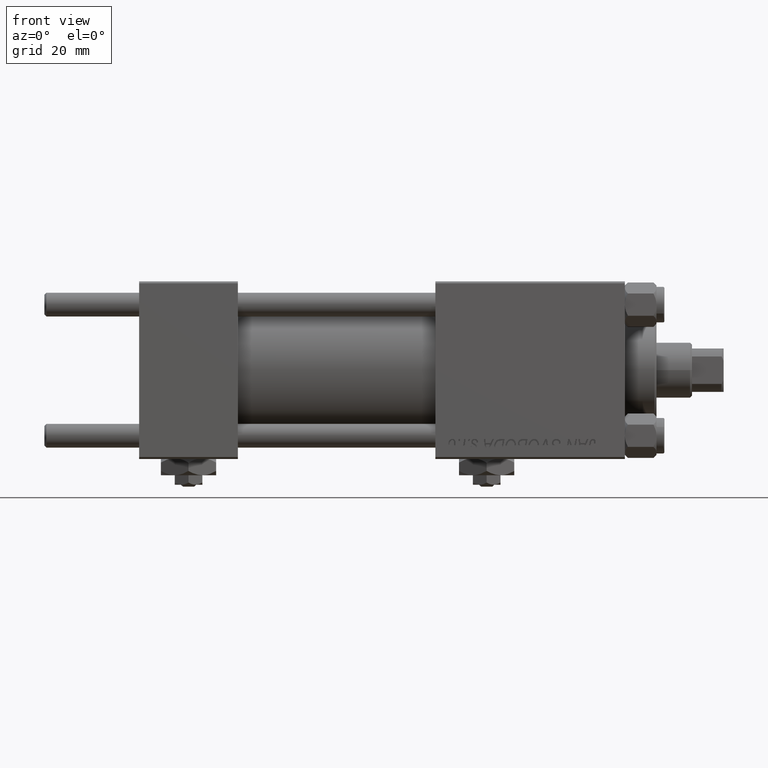
[diagram: clean part render]
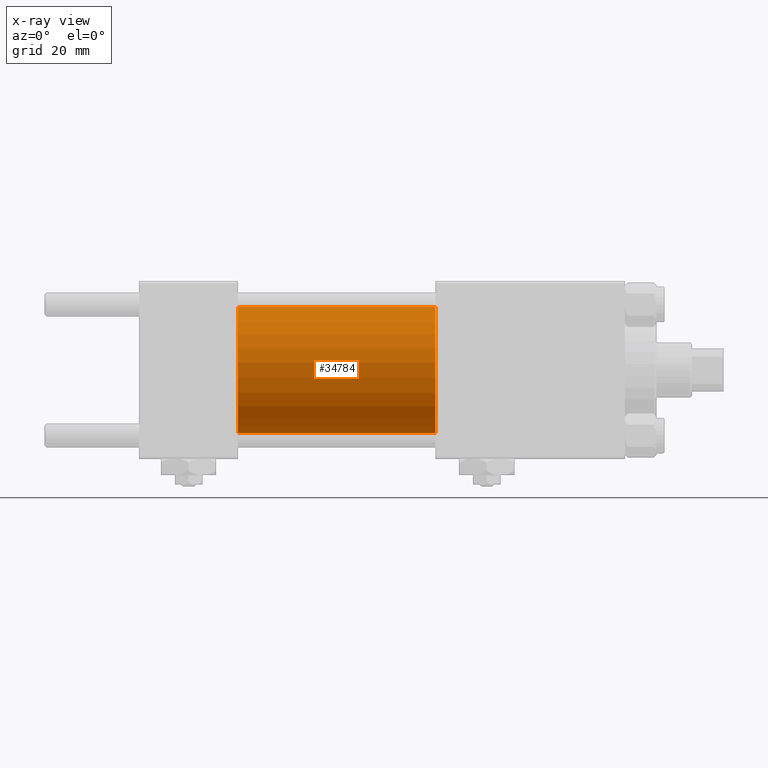
[diagram: x-ray — body ghosted, one internal face saturated and labeled with its STEP entity id]
A machine part, front view, then the same camera in x-ray: the body is ghosted and one INTERNAL B-rep face — a face not visible from any outside direction — is saturated and labeled: STEP entity #34784.
In plain terms, the highlighted cylindrical surface (partial cylindrical patch) has radius 16 mm, axis along (-1, -0, -0).
Its self-contained STEP definition (entity closure, byte-faithful):
#1337 = CIRCLE ( 'NONE', #45769, 16.00000000000000000 ) ;
#2346 = LINE ( 'NONE', #14418, #16420 ) ;
#7460 = VERTEX_POINT ( 'NONE', #30871 ) ;
#7524 = DIRECTION ( 'NONE',  ( 0.000000000000000000, 0.000000000000000000, -1.000000000000000000 ) ) ;
#12738 = EDGE_CURVE ( 'NONE', #26275, #28031, #1337, .T. ) ;
#13156 = DIRECTION ( 'NONE',  ( 0.000000000000000000, 0.000000000000000000, -1.000000000000000000 ) ) ;
#14418 = CARTESIAN_POINT ( 'NONE',  ( 75.00000000000001421, 0.000000000000000000, 16.00000000000000000 ) ) ;
#16383 = EDGE_CURVE ( 'NONE', #26275, #7460, #2346, .T. ) ;
#16420 = VECTOR ( 'NONE', #34379, 1000.000000000000000 ) ;
#18892 = CARTESIAN_POINT ( 'NONE',  ( 75.00000000000001421, 0.000000000000000000, 0.000000000000000000 ) ) ;
#19414 = FACE_OUTER_BOUND ( 'NONE', #51792, .T. ) ;
#20478 = CARTESIAN_POINT ( 'NONE',  ( 75.00000000000001421, 1.959434878635765131E-15, -16.00000000000000000 ) ) ;
#21089 = CIRCLE ( 'NONE', #25316, 16.00000000000000000 ) ;
#22847 = DIRECTION ( 'NONE',  ( -1.000000000000000000, -0.000000000000000000, -0.000000000000000000 ) ) ;
#24338 = VECTOR ( 'NONE', #28357, 1000.000000000000000 ) ;
#25316 = AXIS2_PLACEMENT_3D ( 'NONE', #29660, #27490, #7524 ) ;
#26275 = VERTEX_POINT ( 'NONE', #35797 ) ;
#27304 = DIRECTION ( 'NONE',  ( 0.000000000000000000, 0.000000000000000000, 1.000000000000000000 ) ) ;
#27490 = DIRECTION ( 'NONE',  ( 1.000000000000000000, 0.000000000000000000, 0.000000000000000000 ) ) ;
#28031 = VERTEX_POINT ( 'NONE', #39019 ) ;
#28357 = DIRECTION ( 'NONE',  ( -1.000000000000000000, -0.000000000000000000, -0.000000000000000000 ) ) ;
#29660 = CARTESIAN_POINT ( 'NONE',  ( 25.00000000000000000, 0.000000000000000000, 0.000000000000000000 ) ) ;
#30871 = CARTESIAN_POINT ( 'NONE',  ( 25.00000000000000000, 0.000000000000000000, 16.00000000000000000 ) ) ;
#30941 = EDGE_CURVE ( 'NONE', #28031, #41587, #39922, .T. ) ;
#32350 = CARTESIAN_POINT ( 'NONE',  ( 75.00000000000001421, 0.000000000000000000, 0.000000000000000000 ) ) ;
#34379 = DIRECTION ( 'NONE',  ( -1.000000000000000000, -0.000000000000000000, -0.000000000000000000 ) ) ;
#34661 = CYLINDRICAL_SURFACE ( 'NONE', #35976, 16.00000000000000000 ) ;
#34784 = ADVANCED_FACE ( 'NONE', ( #19414 ), #34661, .F. ) ;
#35797 = CARTESIAN_POINT ( 'NONE',  ( 75.00000000000001421, 0.000000000000000000, 16.00000000000000000 ) ) ;
#35976 = AXIS2_PLACEMENT_3D ( 'NONE', #18892, #22847, #27304 ) ;
#39019 = CARTESIAN_POINT ( 'NONE',  ( 75.00000000000001421, 1.959434878635765131E-15, -16.00000000000000000 ) ) ;
#39922 = LINE ( 'NONE', #20478, #24338 ) ;
#41587 = VERTEX_POINT ( 'NONE', #44424 ) ;
#44183 = ORIENTED_EDGE ( 'NONE', *, *, #12738, .T. ) ;
#44424 = CARTESIAN_POINT ( 'NONE',  ( 25.00000000000000000, 1.959434878635765131E-15, -16.00000000000000000 ) ) ;
#45172 = ORIENTED_EDGE ( 'NONE', *, *, #16383, .F. ) ;
#45545 = ORIENTED_EDGE ( 'NONE', *, *, #45605, .F. ) ;
#45605 = EDGE_CURVE ( 'NONE', #7460, #41587, #21089, .T. ) ;
#45769 = AXIS2_PLACEMENT_3D ( 'NONE', #32350, #48330, #13156 ) ;
#47775 = ORIENTED_EDGE ( 'NONE', *, *, #30941, .T. ) ;
#48330 = DIRECTION ( 'NONE',  ( 1.000000000000000000, 0.000000000000000000, 0.000000000000000000 ) ) ;
#51792 = EDGE_LOOP ( 'NONE', ( #44183, #47775, #45545, #45172 ) ) ;